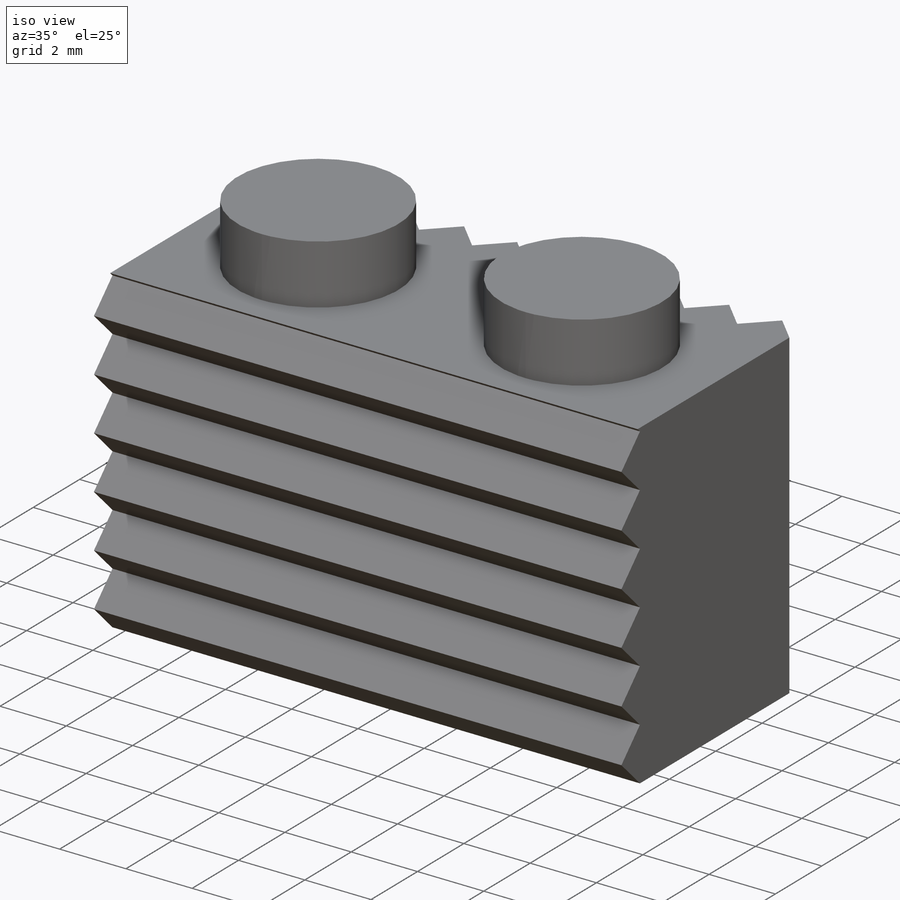
[diagram: iso view]
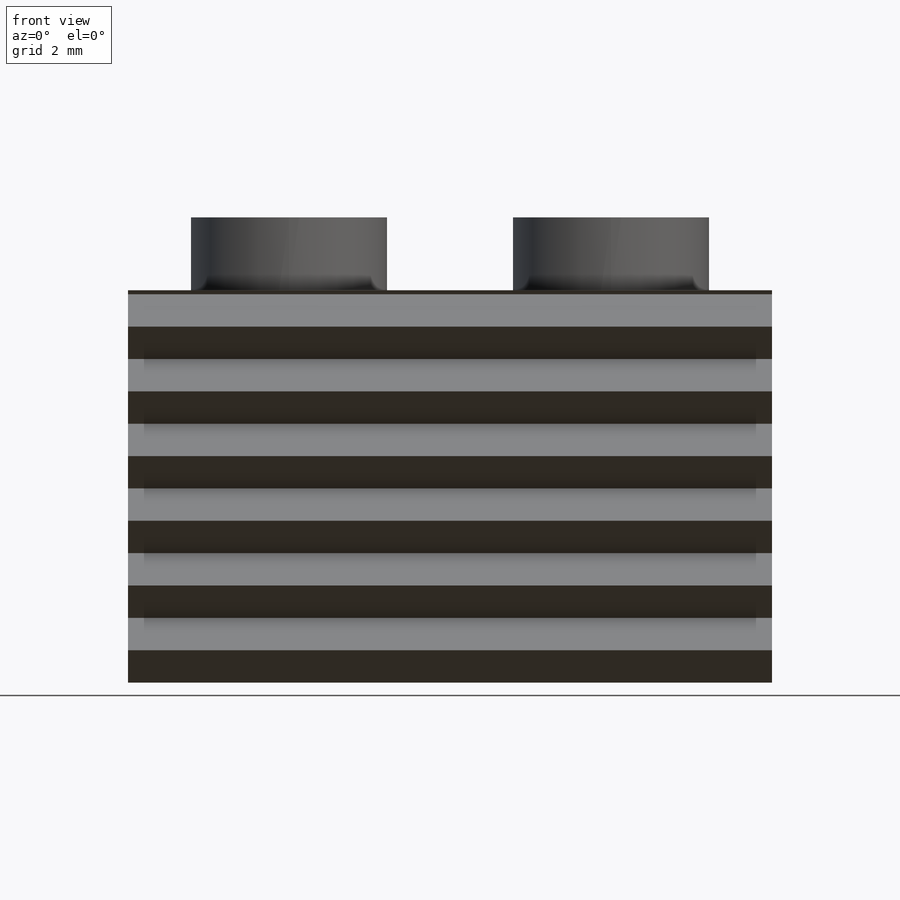
[diagram: front view]
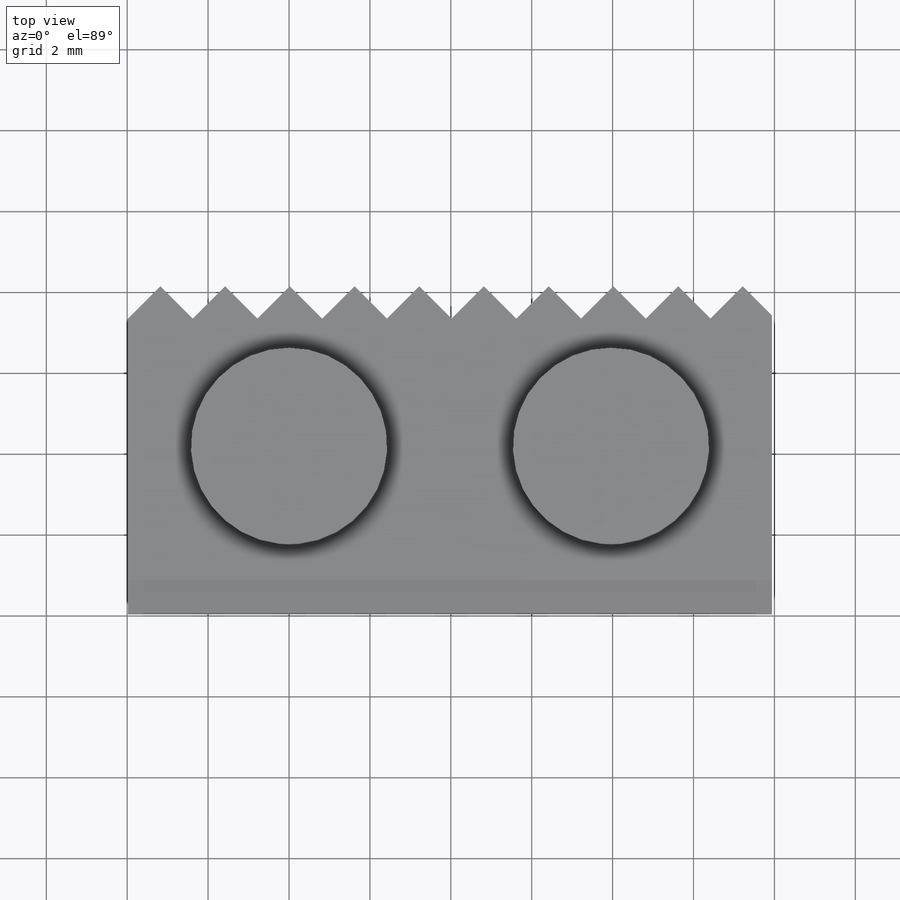
[diagram: top view]
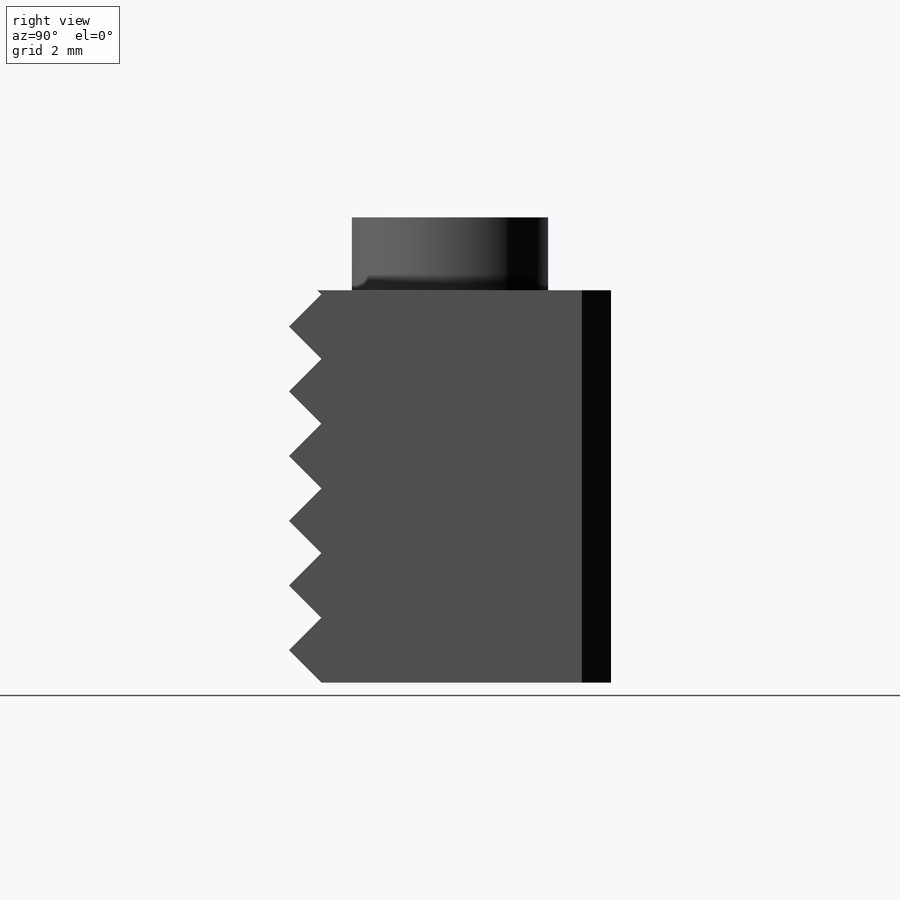
[diagram: right view]
SOLIDWORKS PART (.sldprt)
format: sldprt  version: not decoded by parser v0  size: 290,816 bytes
history: native  units: mm
features: sketch x7, extrude x4, pattern_linear x3, cut_extrude x3, material x1, shell x1 (+14 scaffold rows collapsed)
feature tree (33):
  scaffold x14  (default folders/planes/origin — collapsed)
  material  "Material <not specified>"
  sketch  "Sketch1"  dims[D1=7.96mm]
  extrude  "Extrude1"  Depth=9.7mm
  sketch  "Sketch2"  dims[D1=4.85mm]
  extrude  "Extrude2"  Depth=1.8mm
  pattern_linear  "LPattern1"  Count1=2 Count2=1 Spacing1=7.96mm Spacing2=10mm
  shell  "Shell1"  Thickness=1.55mm
  sketch  "Sketch3"
  cut_extrude  "Extrude3"  Depth=0.14mm
  sketch  "Sketch4"  dims[D1=3.0mm]
  extrude  "Extrude4"  [1 undecoded]
  sketch  "Sketch5"  dims[D1=1.0mm]
  extrude  "Extrude5"  Depth=2mm
  sketch  "Sketch7"  dims[D1=1.6mm D2=0.8mm]
  cut_extrude  "Extrude6"  [1 undecoded]
  pattern_linear  "LPattern2"  Count1=7 Count2=1 Spacing1=1.6mm Spacing2=10mm
  sketch  "Sketch8"  dims[D1=1.6mm D2=0.8mm]
  cut_extrude  "Extrude7"  [1 undecoded]
  pattern_linear  "LPattern3"  Count1=11 Count2=1 Spacing1=1.6mm Spacing2=10mm
decode coverage: 14 of 18 modeling features carry decoded parameters
note: 3 parameter values undecoded
summary: no parameter record found for 3 features
note: suppression state not decoded; provenance and decode notes live in map.json
